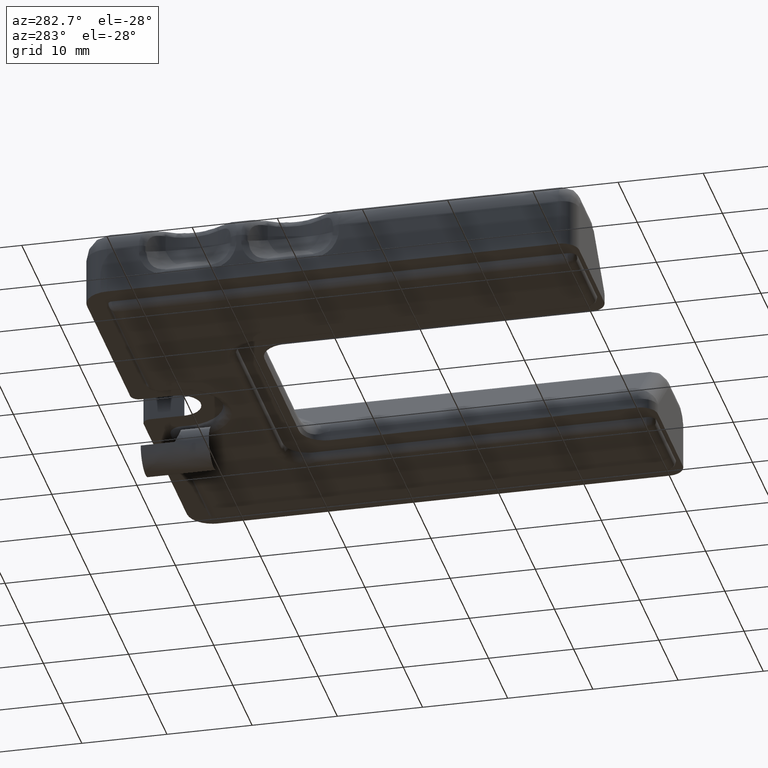
[diagram: clean part render]
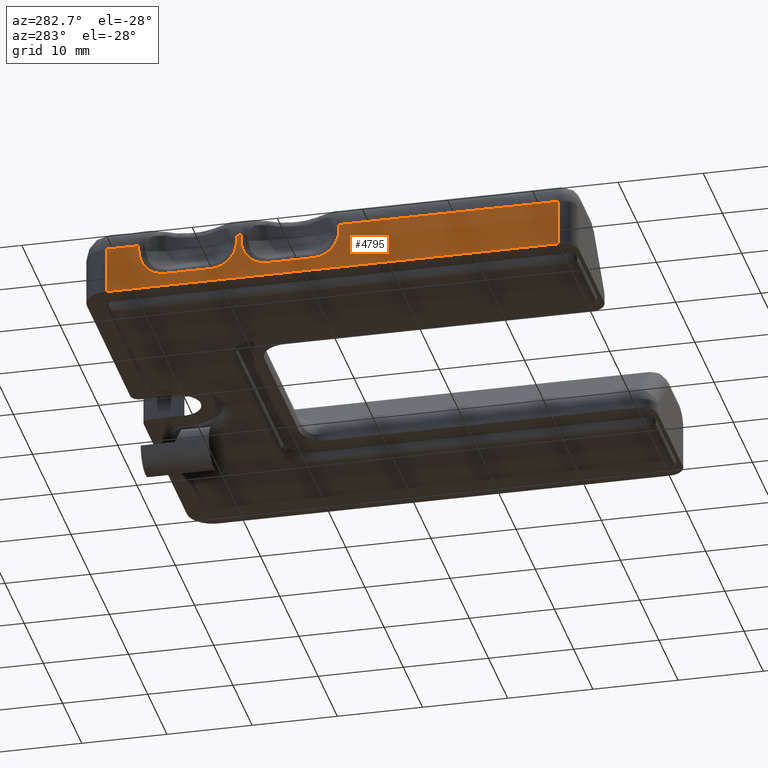
[diagram: same view with one face highlighted and labeled with its STEP entity id]
A machine part, auxiliary view. The second image highlights one B-rep face of the part: STEP entity #4795.
In plain terms, the highlighted face is a freeform B-spline surface patch.
Its self-contained STEP definition (entity closure, byte-faithful):
#1966=CARTESIAN_POINT('',(-28.999999999495749,-55.999999999868997,1.000000000000010));
#1967=VERTEX_POINT('',#1966);
#1981=CARTESIAN_POINT('',(-28.999999999495749,-3.000000000000115,1.0));
#1982=VERTEX_POINT('',#1981);
#1983=CARTESIAN_POINT('',(-28.999999999495749,-3.000000000000115,1.0));
#1984=CARTESIAN_POINT('',(-28.999999999495749,-55.999999999868997,1.000000000000010));
#1985=QUASI_UNIFORM_CURVE('',1,(#1983,#1984),.UNSPECIFIED.,.F.,.U.);
#1986=EDGE_CURVE('',#1982,#1967,#1985,.T.);
#4546=CARTESIAN_POINT('',(-28.999999999495749,-55.999999999868997,6.500000000004870));
#4547=VERTEX_POINT('',#4546);
#4561=CARTESIAN_POINT('',(-28.999999999495749,-55.999999999868997,1.000000000000010));
#4562=CARTESIAN_POINT('',(-28.999999999495749,-55.999999999868997,6.500000000004870));
#4563=QUASI_UNIFORM_CURVE('',1,(#4561,#4562),.UNSPECIFIED.,.F.,.U.);
#4564=EDGE_CURVE('',#1967,#4547,#4563,.T.);
#4570=CARTESIAN_POINT('',(-28.999999999495749,-0.352650102730949,6.774724989345034));
#4571=CARTESIAN_POINT('',(-28.999999999495749,-0.352650102730950,0.725274863138329));
#4572=CARTESIAN_POINT('',(-28.999999999495749,-58.647351318708942,6.774724989345045));
#4573=CARTESIAN_POINT('',(-28.999999999495749,-58.647351318708942,0.725274863138340));
#4574=B_SPLINE_SURFACE_WITH_KNOTS('',1,1,((#4570,#4572),(#4571,#4573)),.UNSPECIFIED.,.F.,.F.,.U.,(2,2),(2,2),(0.0,6.049450126206706),(0.0,58.294701215977987),.UNSPECIFIED.);
#4575=CARTESIAN_POINT('',(-28.999999999495749,-9.825224603660370,2.548583771927537));
#4576=VERTEX_POINT('',#4575);
#4577=CARTESIAN_POINT('',(-28.999999999495749,-6.757300910723378,5.866819373969131));
#4578=VERTEX_POINT('',#4577);
#4579=CARTESIAN_POINT('',(-28.999999999495749,-9.825224603660370,2.548583771927582));
#4580=CARTESIAN_POINT('',(-28.999999999495760,-9.718999317667443,2.548583771927582));
#4581=CARTESIAN_POINT('',(-28.999999999495749,-9.613159991451143,2.553516779503073));
#4582=CARTESIAN_POINT('',(-28.999999999495749,-9.402312065825754,2.574000433799839));
#4583=CARTESIAN_POINT('',(-28.999999999495749,-9.296858572099577,2.589660446299365));
#4584=CARTESIAN_POINT('',(-28.999999999495738,-8.986415486163999,2.652763909891452));
#4585=CARTESIAN_POINT('',(-28.999999999495749,-8.786699944996958,2.716079995948758));
#4586=CARTESIAN_POINT('',(-28.999999999495760,-8.546410797983503,2.822655202502167));
#4587=CARTESIAN_POINT('',(-28.999999999495749,-8.498823257277532,2.845349151367276));
#4588=CARTESIAN_POINT('',(-28.999999999495749,-8.404608005200270,2.893551311761678));
#4589=CARTESIAN_POINT('',(-28.999999999495749,-8.357858621561046,2.919138773686480));
#4590=CARTESIAN_POINT('',(-28.999999999495749,-8.220818397754163,2.999175212521127));
#4591=CARTESIAN_POINT('',(-28.999999999495749,-8.133254375764857,3.057096148755416));
#4592=CARTESIAN_POINT('',(-28.999999999495760,-7.881391319179347,3.243876469183594));
#4593=CARTESIAN_POINT('',(-28.999999999495760,-7.727827681012273,3.385640833321353));
#4594=CARTESIAN_POINT('',(-28.999999999495749,-7.553458165200358,3.583985189645499));
#4595=CARTESIAN_POINT('',(-28.999999999495749,-7.519369859648418,3.624854518962078));
#4596=CARTESIAN_POINT('',(-28.999999999495749,-7.453690343718575,3.707838914393602));
#4597=CARTESIAN_POINT('',(-28.999999999495749,-7.422054129398311,3.749990024120566));
#4598=CARTESIAN_POINT('',(-28.999999999495749,-7.330619061192605,3.878345054280973));
#4599=CARTESIAN_POINT('',(-28.999999999495738,-7.274285285247810,3.966446023886645));
#4600=CARTESIAN_POINT('',(-28.999999999495749,-7.118408179348003,4.237934137418715));
#4601=CARTESIAN_POINT('',(-28.999999999495738,-7.031886802179640,4.428450496092336));
#4602=CARTESIAN_POINT('',(-28.999999999495749,-6.944814862658936,4.678136632281674));
#4603=CARTESIAN_POINT('',(-28.999999999495749,-6.928471482412203,4.728655351249979));
#4604=CARTESIAN_POINT('',(-28.999999999495749,-6.898209696838283,4.829800209177948));
#4605=CARTESIAN_POINT('',(-28.999999999495749,-6.884243705326426,4.880556840597222));
#4606=CARTESIAN_POINT('',(-28.999999999495749,-6.845728795843930,5.033361689106107));
#4607=CARTESIAN_POINT('',(-28.999999999495749,-6.824556168019558,5.135943789150439));
#4608=CARTESIAN_POINT('',(-28.999999999495749,-6.773934942453416,5.445729400341187));
#4609=CARTESIAN_POINT('',(-28.999999999495749,-6.757300910723376,5.654959241592383));
#4610=CARTESIAN_POINT('',(-28.999999999495749,-6.757300910723378,5.866819373969131));
#4611=B_SPLINE_CURVE_WITH_KNOTS('',3,(#4579,#4580,#4581,#4582,#4583,#4584,#4585,#4586,#4587,#4588,#4589,#4590,#4591,#4592,#4593,#4594,#4595,#4596,#4597,#4598,#4599,#4600,#4601,#4602,#4603,#4604,#4605,#4606,#4607,#4608,#4609,#4610),.UNSPECIFIED.,.F.,.U.,(4,2,2,2,2,2,2,2,2,2,2,2,2,2,2,4),(0.0,0.062500000000000,0.125000000000000,0.249999999999999,0.281249999999999,0.312499999999999,0.374999999999998,0.499999999999998,0.531249999999998,0.562499999999998,0.624999999999998,0.749999999999997,0.781249999999998,0.812499999999998,0.874999999999999,1.0),.UNSPECIFIED.);
#4612=EDGE_CURVE('',#4576,#4578,#4611,.T.);
#4613=ORIENTED_EDGE('',*,*,#4612,.T.);
#4614=CARTESIAN_POINT('',(-28.999999999495749,-6.757300910723378,6.500000000004571));
#4615=VERTEX_POINT('',#4614);
#4616=CARTESIAN_POINT('',(-28.999999999495749,-6.757300910723378,5.866819373969131));
#4617=CARTESIAN_POINT('',(-28.999999999495749,-6.757300910723378,6.500000000004571));
#4618=QUASI_UNIFORM_CURVE('',1,(#4616,#4617),.UNSPECIFIED.,.F.,.U.);
#4619=EDGE_CURVE('',#4578,#4615,#4618,.T.);
#4620=ORIENTED_EDGE('',*,*,#4619,.T.);
#4621=CARTESIAN_POINT('',(-28.999999999495749,-3.000000000000114,6.500000000004551));
#4622=VERTEX_POINT('',#4621);
#4623=CARTESIAN_POINT('',(-28.999999999495749,-6.757300910723378,6.500000000004571));
#4624=CARTESIAN_POINT('',(-28.999999999495749,-3.000000000000114,6.500000000004551));
#4625=QUASI_UNIFORM_CURVE('',1,(#4623,#4624),.UNSPECIFIED.,.F.,.U.);
#4626=EDGE_CURVE('',#4615,#4622,#4625,.T.);
#4627=ORIENTED_EDGE('',*,*,#4626,.T.);
#4628=CARTESIAN_POINT('',(-28.999999999495749,-3.000000000000114,6.500000000004551));
#4629=CARTESIAN_POINT('',(-28.999999999495749,-3.000000000000115,1.0));
#4630=QUASI_UNIFORM_CURVE('',1,(#4628,#4629),.UNSPECIFIED.,.F.,.U.);
#4631=EDGE_CURVE('',#4622,#1982,#4630,.T.);
#4632=ORIENTED_EDGE('',*,*,#4631,.T.);
#4633=ORIENTED_EDGE('',*,*,#1986,.T.);
#4634=ORIENTED_EDGE('',*,*,#4564,.T.);
#4635=CARTESIAN_POINT('',(-28.999999999495749,-30.242699072729199,6.500000000004715));
#4636=VERTEX_POINT('',#4635);
#4637=CARTESIAN_POINT('',(-28.999999999495749,-55.999999999868997,6.500000000004870));
#4638=CARTESIAN_POINT('',(-28.999999999495749,-30.242699072729199,6.500000000004715));
#4639=QUASI_UNIFORM_CURVE('',1,(#4637,#4638),.UNSPECIFIED.,.F.,.U.);
#4640=EDGE_CURVE('',#4547,#4636,#4639,.T.);
#4641=ORIENTED_EDGE('',*,*,#4640,.T.);
#4642=CARTESIAN_POINT('',(-28.999999999495749,-30.242699072729199,5.866826327136765));
#4643=VERTEX_POINT('',#4642);
#4644=CARTESIAN_POINT('',(-28.999999999495749,-30.242699072729199,6.500000000004715));
#4645=CARTESIAN_POINT('',(-28.999999999495749,-30.242699072729199,5.866826327136765));
#4646=QUASI_UNIFORM_CURVE('',1,(#4644,#4645),.UNSPECIFIED.,.F.,.U.);
#4647=EDGE_CURVE('',#4636,#4643,#4646,.T.);
#4648=ORIENTED_EDGE('',*,*,#4647,.T.);
#4649=CARTESIAN_POINT('',(-28.999999999495749,-27.174771883646351,2.548583771927540));
#4650=VERTEX_POINT('',#4649);
#4651=CARTESIAN_POINT('',(-28.999999999495749,-30.242699072729199,5.866826327136765));
#4652=CARTESIAN_POINT('',(-28.999999999495749,-30.242699072729199,5.655101626542523));
#4653=CARTESIAN_POINT('',(-28.999999999495749,-30.226088215347620,5.445639029387634));
#4654=CARTESIAN_POINT('',(-28.999999999495749,-30.175264454536109,5.134973271087707));
#4655=CARTESIAN_POINT('',(-28.999999999495749,-30.153984498404132,5.032008872464578));
#4656=CARTESIAN_POINT('',(-28.999999999495749,-30.115206408045442,4.878496233463039));
#4657=CARTESIAN_POINT('',(-28.999999999495749,-30.101101136769302,4.827373034492545));
#4658=CARTESIAN_POINT('',(-28.999999999495760,-30.070728581774478,4.726125624311898));
#4659=CARTESIAN_POINT('',(-28.999999999495749,-30.054464422490842,4.675988344728033));
#4660=CARTESIAN_POINT('',(-28.999999999495760,-29.967737587785368,4.427741578821636));
#4661=CARTESIAN_POINT('',(-28.999999999495749,-29.881205026752831,4.236884095777052));
#4662=CARTESIAN_POINT('',(-28.999999999495749,-29.723683015098342,3.963108758054791));
#4663=CARTESIAN_POINT('',(-28.999999999495760,-29.666204855500631,3.873550706181514));
#4664=CARTESIAN_POINT('',(-28.999999999495749,-29.543548230590151,3.702070516421324));
#4665=CARTESIAN_POINT('',(-28.999999999495749,-29.478278977783908,3.619886549798148));
#4666=CARTESIAN_POINT('',(-28.999999999495749,-29.339750610082302,3.462728310638334));
#4667=CARTESIAN_POINT('',(-28.999999999495749,-29.266492421842461,3.387753201929208));
#4668=CARTESIAN_POINT('',(-28.999999999495749,-29.150360521882590,3.280925402406613));
#4669=CARTESIAN_POINT('',(-28.999999999495760,-29.110607247531188,3.246256968518583));
#4670=CARTESIAN_POINT('',(-28.999999999495749,-29.028948358903680,3.178862275995885));
#4671=CARTESIAN_POINT('',(-28.999999999495760,-28.987091786606349,3.146190129398131));
#4672=CARTESIAN_POINT('',(-28.999999999495738,-28.774923342464469,2.989697106987543));
#4673=CARTESIAN_POINT('',(-28.999999999495749,-28.594127383820972,2.884707556729463));
#4674=CARTESIAN_POINT('',(-28.999999999495760,-28.354319346965479,2.778702197964612));
#4675=CARTESIAN_POINT('',(-28.999999999495749,-28.305661943088761,2.758772097904533));
#4676=CARTESIAN_POINT('',(-28.999999999495749,-28.206936037001618,2.721489470427372));
#4677=CARTESIAN_POINT('',(-28.999999999495749,-28.156706120054221,2.704089625510096));
#4678=CARTESIAN_POINT('',(-28.999999999495749,-28.005370382347060,2.656285540519956));
#4679=CARTESIAN_POINT('',(-28.999999999495749,-27.903558377404650,2.630196700755910));
#4680=CARTESIAN_POINT('',(-28.999999999495749,-27.595526963807721,2.568210831561096));
#4681=CARTESIAN_POINT('',(-28.999999999495738,-27.386713858995940,2.548583771927584));
#4682=CARTESIAN_POINT('',(-28.999999999495749,-27.174771883646351,2.548583771927585));
#4683=B_SPLINE_CURVE_WITH_KNOTS('',3,(#4651,#4652,#4653,#4654,#4655,#4656,#4657,#4658,#4659,#4660,#4661,#4662,#4663,#4664,#4665,#4666,#4667,#4668,#4669,#4670,#4671,#4672,#4673,#4674,#4675,#4676,#4677,#4678,#4679,#4680,#4681,#4682),.UNSPECIFIED.,.F.,.U.,(4,2,2,2,2,2,2,2,2,2,2,2,2,2,2,4),(0.0,0.125000000000001,0.187500000000001,0.218750000000002,0.250000000000002,0.375000000000003,0.437500000000004,0.500000000000005,0.562500000000005,0.593750000000005,0.625000000000006,0.750000000000004,0.781250000000003,0.812500000000003,0.875000000000002,1.0),.UNSPECIFIED.);
#4684=EDGE_CURVE('',#4643,#4650,#4683,.T.);
#4685=ORIENTED_EDGE('',*,*,#4684,.T.);
#4686=CARTESIAN_POINT('',(-28.999999999495749,-21.825224603660349,2.548583771927584));
#4687=VERTEX_POINT('',#4686);
#4688=CARTESIAN_POINT('',(-28.999999999495749,-27.174771883646351,2.548583771927540));
#4689=CARTESIAN_POINT('',(-28.999999999495749,-21.825224603660349,2.548583771927584));
#4690=QUASI_UNIFORM_CURVE('',1,(#4688,#4689),.UNSPECIFIED.,.F.,.U.);
#4691=EDGE_CURVE('',#4650,#4687,#4690,.T.);
#4692=ORIENTED_EDGE('',*,*,#4691,.T.);
#4693=CARTESIAN_POINT('',(-28.999999999495749,-18.757300910723401,5.866819373969133));
#4694=VERTEX_POINT('',#4693);
#4695=CARTESIAN_POINT('',(-28.999999999495749,-21.825224603660349,2.548583771927584));
#4696=CARTESIAN_POINT('',(-28.999999999495749,-21.718999317667411,2.548583771927584));
#4697=CARTESIAN_POINT('',(-28.999999999495749,-21.613159991451131,2.553516779503078));
#4698=CARTESIAN_POINT('',(-28.999999999495760,-21.402312065825740,2.574000433799844));
#4699=CARTESIAN_POINT('',(-28.999999999495749,-21.296858572099559,2.589660446299370));
#4700=CARTESIAN_POINT('',(-28.999999999495749,-20.986415486163981,2.652763909891459));
#4701=CARTESIAN_POINT('',(-28.999999999495749,-20.786699944996940,2.716079995948763));
#4702=CARTESIAN_POINT('',(-28.999999999495749,-20.546410797983491,2.822655202502174));
#4703=CARTESIAN_POINT('',(-28.999999999495749,-20.498823257277522,2.845349151367284));
#4704=CARTESIAN_POINT('',(-28.999999999495749,-20.404608005200259,2.893551311761688));
#4705=CARTESIAN_POINT('',(-28.999999999495749,-20.357858621561029,2.919138773686489));
#4706=CARTESIAN_POINT('',(-28.999999999495749,-20.220818397754151,2.999175212521136));
#4707=CARTESIAN_POINT('',(-28.999999999495749,-20.133254375764849,3.057096148755427));
#4708=CARTESIAN_POINT('',(-28.999999999495760,-19.881391319179340,3.243876469183604));
#4709=CARTESIAN_POINT('',(-28.999999999495760,-19.727827681012279,3.385640833321364));
#4710=CARTESIAN_POINT('',(-28.999999999495749,-19.553458165200361,3.583985189645509));
#4711=CARTESIAN_POINT('',(-28.999999999495749,-19.519369859648421,3.624854518962091));
#4712=CARTESIAN_POINT('',(-28.999999999495749,-19.453690343718581,3.707838914393616));
#4713=CARTESIAN_POINT('',(-28.999999999495749,-19.422054129398312,3.749990024120578));
#4714=CARTESIAN_POINT('',(-28.999999999495749,-19.330619061192600,3.878345054280982));
#4715=CARTESIAN_POINT('',(-28.999999999495749,-19.274285285247799,3.966446023886655));
#4716=CARTESIAN_POINT('',(-28.999999999495738,-19.118408179347998,4.237934137418721));
#4717=CARTESIAN_POINT('',(-28.999999999495749,-19.031886802179638,4.428450496092343));
#4718=CARTESIAN_POINT('',(-28.999999999495749,-18.944814862658941,4.678136632281678));
#4719=CARTESIAN_POINT('',(-28.999999999495738,-18.928471482412199,4.728655351249989));
#4720=CARTESIAN_POINT('',(-28.999999999495749,-18.898209696838279,4.829800209177956));
#4721=CARTESIAN_POINT('',(-28.999999999495749,-18.884243705326430,4.880556840597230));
#4722=CARTESIAN_POINT('',(-28.999999999495749,-18.845728795843929,5.033361689106115));
#4723=CARTESIAN_POINT('',(-28.999999999495749,-18.824556168019559,5.135943789150447));
#4724=CARTESIAN_POINT('',(-28.999999999495749,-18.773934942453419,5.445729400341194));
#4725=CARTESIAN_POINT('',(-28.999999999495760,-18.757300910723409,5.654959241592391));
#4726=CARTESIAN_POINT('',(-28.999999999495749,-18.757300910723401,5.866819373969134));
#4727=B_SPLINE_CURVE_WITH_KNOTS('',3,(#4695,#4696,#4697,#4698,#4699,#4700,#4701,#4702,#4703,#4704,#4705,#4706,#4707,#4708,#4709,#4710,#4711,#4712,#4713,#4714,#4715,#4716,#4717,#4718,#4719,#4720,#4721,#4722,#4723,#4724,#4725,#4726),.UNSPECIFIED.,.F.,.U.,(4,2,2,2,2,2,2,2,2,2,2,2,2,2,2,4),(0.0,0.062499999999998,0.124999999999996,0.249999999999995,0.281249999999994,0.312499999999993,0.374999999999993,0.499999999999993,0.531249999999993,0.562499999999994,0.624999999999995,0.749999999999997,0.781249999999998,0.812499999999999,0.874999999999999,1.0),.UNSPECIFIED.);
#4728=EDGE_CURVE('',#4687,#4694,#4727,.T.);
#4729=ORIENTED_EDGE('',*,*,#4728,.T.);
#4730=CARTESIAN_POINT('',(-28.999999999495749,-18.757300910723401,6.500000000004643));
#4731=VERTEX_POINT('',#4730);
#4732=CARTESIAN_POINT('',(-28.999999999495749,-18.757300910723401,5.866819373969133));
#4733=CARTESIAN_POINT('',(-28.999999999495749,-18.757300910723401,6.500000000004643));
#4734=QUASI_UNIFORM_CURVE('',1,(#4732,#4733),.UNSPECIFIED.,.F.,.U.);
#4735=EDGE_CURVE('',#4694,#4731,#4734,.T.);
#4736=ORIENTED_EDGE('',*,*,#4735,.T.);
#4737=CARTESIAN_POINT('',(-28.999999999495749,-18.242699072729199,6.500000000004643));
#4738=VERTEX_POINT('',#4737);
#4739=CARTESIAN_POINT('',(-28.999999999495749,-18.757300910723401,6.500000000004643));
#4740=CARTESIAN_POINT('',(-28.999999999495749,-18.242699072729199,6.500000000004643));
#4741=QUASI_UNIFORM_CURVE('',1,(#4739,#4740),.UNSPECIFIED.,.F.,.U.);
#4742=EDGE_CURVE('',#4731,#4738,#4741,.T.);
#4743=ORIENTED_EDGE('',*,*,#4742,.T.);
#4744=CARTESIAN_POINT('',(-28.999999999495749,-18.242699072729199,5.866826327136754));
#4745=VERTEX_POINT('',#4744);
#4746=CARTESIAN_POINT('',(-28.999999999495749,-18.242699072729199,6.500000000004643));
#4747=CARTESIAN_POINT('',(-28.999999999495749,-18.242699072729199,5.866826327136754));
#4748=QUASI_UNIFORM_CURVE('',1,(#4746,#4747),.UNSPECIFIED.,.F.,.U.);
#4749=EDGE_CURVE('',#4738,#4745,#4748,.T.);
#4750=ORIENTED_EDGE('',*,*,#4749,.T.);
#4751=CARTESIAN_POINT('',(-28.999999999495749,-15.174771883646351,2.548583771927583));
#4752=VERTEX_POINT('',#4751);
#4753=CARTESIAN_POINT('',(-28.999999999495749,-18.242699072729199,5.866826327136754));
#4754=CARTESIAN_POINT('',(-28.999999999495749,-18.242699072729209,5.655101626542512));
#4755=CARTESIAN_POINT('',(-28.999999999495760,-18.226088215347598,5.445639029387627));
#4756=CARTESIAN_POINT('',(-28.999999999495749,-18.175264454536091,5.134973271087699));
#4757=CARTESIAN_POINT('',(-28.999999999495749,-18.153984498404110,5.032008872464573));
#4758=CARTESIAN_POINT('',(-28.999999999495738,-18.115206408045410,4.878496233463030));
#4759=CARTESIAN_POINT('',(-28.999999999495749,-18.101101136769280,4.827373034492545));
#4760=CARTESIAN_POINT('',(-28.999999999495738,-18.070728581774439,4.726125624311895));
#4761=CARTESIAN_POINT('',(-28.999999999495749,-18.054464422490810,4.675988344728030));
#4762=CARTESIAN_POINT('',(-28.999999999495749,-17.967737587785340,4.427741578821634));
#4763=CARTESIAN_POINT('',(-28.999999999495749,-17.881205026752820,4.236884095777048));
#4764=CARTESIAN_POINT('',(-28.999999999495749,-17.723683015098331,3.963108758054787));
#4765=CARTESIAN_POINT('',(-28.999999999495749,-17.666204855500599,3.873550706181516));
#4766=CARTESIAN_POINT('',(-28.999999999495749,-17.543548230590119,3.702070516421328));
#4767=CARTESIAN_POINT('',(-28.999999999495749,-17.478278977783880,3.619886549798155));
#4768=CARTESIAN_POINT('',(-28.999999999495749,-17.339750610082280,3.462728310638339));
#4769=CARTESIAN_POINT('',(-28.999999999495749,-17.266492421842450,3.387753201929210));
#4770=CARTESIAN_POINT('',(-28.999999999495749,-17.150360521882568,3.280925402406613));
#4771=CARTESIAN_POINT('',(-28.999999999495749,-17.110607247531171,3.246256968518586));
#4772=CARTESIAN_POINT('',(-28.999999999495760,-17.028948358903680,3.178862275995889));
#4773=CARTESIAN_POINT('',(-28.999999999495749,-16.987091786606339,3.146190129398136));
#4774=CARTESIAN_POINT('',(-28.999999999495749,-16.774923342464461,2.989697106987549));
#4775=CARTESIAN_POINT('',(-28.999999999495749,-16.594127383820961,2.884707556729468));
#4776=CARTESIAN_POINT('',(-28.999999999495760,-16.354319346965472,2.778702197964615));
#4777=CARTESIAN_POINT('',(-28.999999999495749,-16.305661943088751,2.758772097904536));
#4778=CARTESIAN_POINT('',(-28.999999999495749,-16.206936037001618,2.721489470427375));
#4779=CARTESIAN_POINT('',(-28.999999999495749,-16.156706120054231,2.704089625510101));
#4780=CARTESIAN_POINT('',(-28.999999999495749,-16.005370382347049,2.656285540519960));
#4781=CARTESIAN_POINT('',(-28.999999999495749,-15.903558377404650,2.630196700755912));
#4782=CARTESIAN_POINT('',(-28.999999999495738,-15.595526963807719,2.568210831561096));
#4783=CARTESIAN_POINT('',(-28.999999999495749,-15.386713858995950,2.548583771927582));
#4784=CARTESIAN_POINT('',(-28.999999999495749,-15.174771883646351,2.548583771927583));
#4785=B_SPLINE_CURVE_WITH_KNOTS('',3,(#4753,#4754,#4755,#4756,#4757,#4758,#4759,#4760,#4761,#4762,#4763,#4764,#4765,#4766,#4767,#4768,#4769,#4770,#4771,#4772,#4773,#4774,#4775,#4776,#4777,#4778,#4779,#4780,#4781,#4782,#4783,#4784),.UNSPECIFIED.,.F.,.U.,(4,2,2,2,2,2,2,2,2,2,2,2,2,2,2,4),(0.0,0.124999999999998,0.187499999999997,0.218749999999997,0.249999999999997,0.374999999999996,0.437499999999996,0.499999999999995,0.562499999999995,0.593749999999994,0.624999999999994,0.749999999999995,0.781249999999995,0.812499999999995,0.874999999999996,1.0),.UNSPECIFIED.);
#4786=EDGE_CURVE('',#4745,#4752,#4785,.T.);
#4787=ORIENTED_EDGE('',*,*,#4786,.T.);
#4788=CARTESIAN_POINT('',(-28.999999999495749,-15.174771883646351,2.548583771927583));
#4789=CARTESIAN_POINT('',(-28.999999999495749,-9.825224603660370,2.548583771927537));
#4790=QUASI_UNIFORM_CURVE('',1,(#4788,#4789),.UNSPECIFIED.,.F.,.U.);
#4791=EDGE_CURVE('',#4752,#4576,#4790,.T.);
#4792=ORIENTED_EDGE('',*,*,#4791,.T.);
#4793=EDGE_LOOP('',(#4613,#4620,#4627,#4632,#4633,#4634,#4641,#4648,#4685,#4692,#4729,#4736,#4743,#4750,#4787,#4792));
#4794=FACE_OUTER_BOUND('',#4793,.T.);
#4795=ADVANCED_FACE('',(#4794),#4574,.T.);